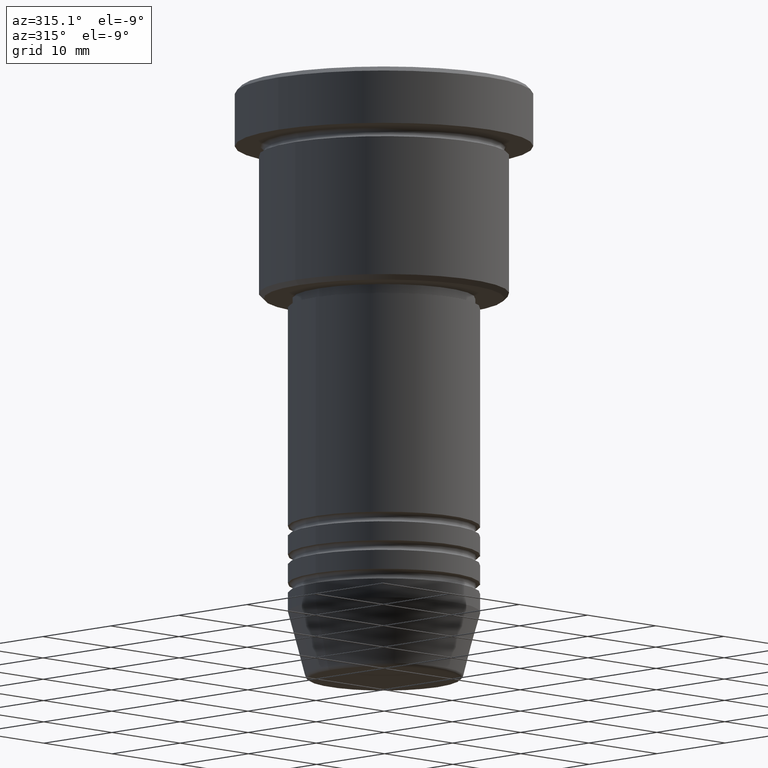
[diagram: clean part render]
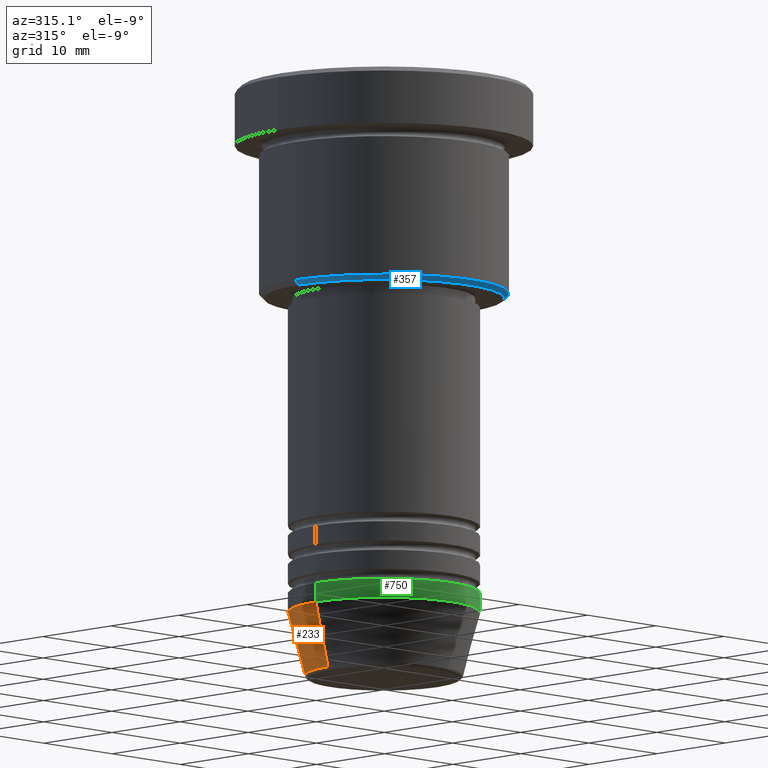
[diagram: same view with three faces highlighted in distinct colors, each labeled with its STEP entity id]
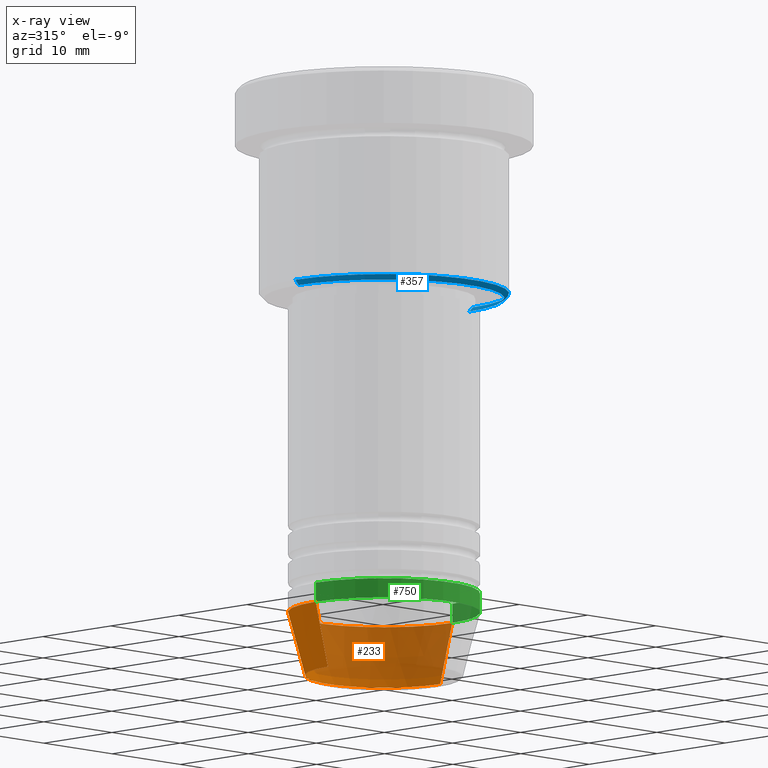
[diagram: x-ray of the same camera — body ghosted, the three highlighted faces saturated]
A machine part, auxiliary view with three faces highlighted in distinct colors.
The next image is the same camera in x-ray (body ghosted, the three faces saturated) — at least one of them is partly hidden behind the body in this view.
Their STEP definitions:

[orange] entity #233 — the highlighted conical surface has half-angle 15 deg.
#6 = EDGE_CURVE ( 'NONE', #618, #454, #274, .T. ) ;
#21 = ORIENTED_EDGE ( 'NONE', *, *, #638, .T. ) ;
#54 = CARTESIAN_POINT ( 'NONE',  ( 0.000000000000000000, 0.000000000000000000, -55.00000000000000000 ) ) ;
#83 = CARTESIAN_POINT ( 'NONE',  ( 0.000000000000000000, 0.000000000000000000, -61.62940952255126348 ) ) ;
#147 = ORIENTED_EDGE ( 'NONE', *, *, #6, .F. ) ;
#151 = CIRCLE ( 'NONE', #605, 8.223655072137191269 ) ;
#163 = FACE_OUTER_BOUND ( 'NONE', #284, .T. ) ;
#182 = CARTESIAN_POINT ( 'NONE',  ( -10.00000000000000000, 1.224646799147353256E-15, -55.00000000000000000 ) ) ;
#233 = ADVANCED_FACE ( 'NONE', ( #163 ), #416, .T. ) ;
#235 = ORIENTED_EDGE ( 'NONE', *, *, #1066, .F. ) ;
#274 = LINE ( 'NONE', #659, #1159 ) ;
#284 = EDGE_LOOP ( 'NONE', ( #697, #21, #235, #147 ) ) ;
#334 = DIRECTION ( 'NONE',  ( 1.000000000000000000, 0.000000000000000000, 0.000000000000000000 ) ) ;
#381 = EDGE_CURVE ( 'NONE', #618, #813, #151, .T. ) ;
#393 = CARTESIAN_POINT ( 'NONE',  ( -8.223655072137191269, 1.115877042642912054E-15, -61.62940952255126348 ) ) ;
#401 = DIRECTION ( 'NONE',  ( 1.000000000000000000, 0.000000000000000000, 0.000000000000000000 ) ) ;
#416 = CONICAL_SURFACE ( 'NONE', #724, 10.00000000000000000, 0.2617993877991500740 ) ;
#454 = VERTEX_POINT ( 'NONE', #583 ) ;
#557 = DIRECTION ( 'NONE',  ( 1.000000000000000000, 0.000000000000000000, 0.000000000000000000 ) ) ;
#579 = DIRECTION ( 'NONE',  ( -0.000000000000000000, -0.000000000000000000, 1.000000000000000000 ) ) ;
#583 = CARTESIAN_POINT ( 'NONE',  ( 10.00000000000000000, 0.000000000000000000, -55.00000000000000000 ) ) ;
#605 = AXIS2_PLACEMENT_3D ( 'NONE', #83, #579, #401 ) ;
#618 = VERTEX_POINT ( 'NONE', #1153 ) ;
#638 = EDGE_CURVE ( 'NONE', #813, #1018, #640, .T. ) ;
#640 = LINE ( 'NONE', #182, #1162 ) ;
#653 = DIRECTION ( 'NONE',  ( 0.2588190451025213501, 0.000000000000000000, 0.9659258262890680902 ) ) ;
#659 = CARTESIAN_POINT ( 'NONE',  ( 10.00000000000000000, 0.000000000000000000, -55.00000000000000000 ) ) ;
#685 = CARTESIAN_POINT ( 'NONE',  ( -10.00000000000000000, 1.224646799147353256E-15, -55.00000000000000000 ) ) ;
#697 = ORIENTED_EDGE ( 'NONE', *, *, #381, .T. ) ;
#724 = AXIS2_PLACEMENT_3D ( 'NONE', #54, #883, #334 ) ;
#813 = VERTEX_POINT ( 'NONE', #393 ) ;
#826 = CARTESIAN_POINT ( 'NONE',  ( 0.000000000000000000, 0.000000000000000000, -55.00000000000000000 ) ) ;
#883 = DIRECTION ( 'NONE',  ( -0.000000000000000000, -0.000000000000000000, 1.000000000000000000 ) ) ;
#1018 = VERTEX_POINT ( 'NONE', #685 ) ;
#1066 = EDGE_CURVE ( 'NONE', #454, #1018, #1103, .T. ) ;
#1084 = DIRECTION ( 'NONE',  ( -0.2588190451025213501, 3.169619151431772337E-17, 0.9659258262890680902 ) ) ;
#1103 = CIRCLE ( 'NONE', #1163, 10.00000000000000000 ) ;
#1106 = DIRECTION ( 'NONE',  ( -0.000000000000000000, -0.000000000000000000, 1.000000000000000000 ) ) ;
#1153 = CARTESIAN_POINT ( 'NONE',  ( 8.223655072137191269, 0.000000000000000000, -61.62940952255126348 ) ) ;
#1159 = VECTOR ( 'NONE', #653, 1000.000000000000000 ) ;
#1162 = VECTOR ( 'NONE', #1084, 1000.000000000000000 ) ;
#1163 = AXIS2_PLACEMENT_3D ( 'NONE', #826, #1106, #557 ) ;

[blue] entity #357 — the highlighted conical surface has half-angle 45 deg.
#13 = AXIS2_PLACEMENT_3D ( 'NONE', #707, #159, #1167 ) ;
#73 = DIRECTION ( 'NONE',  ( 0.7071067811865487940, 0.000000000000000000, 0.7071067811865463515 ) ) ;
#102 = FACE_OUTER_BOUND ( 'NONE', #519, .T. ) ;
#121 = CARTESIAN_POINT ( 'NONE',  ( 12.49999999999998401, 0.000000000000000000, -22.00000000000000000 ) ) ;
#159 = DIRECTION ( 'NONE',  ( -0.000000000000000000, -0.000000000000000000, 1.000000000000000000 ) ) ;
#200 = CARTESIAN_POINT ( 'NONE',  ( 0.000000000000000000, 0.000000000000000000, -22.00000000000000000 ) ) ;
#256 = VERTEX_POINT ( 'NONE', #442 ) ;
#265 = DIRECTION ( 'NONE',  ( -0.7071067811865487940, 8.659560562354948882E-17, 0.7071067811865463515 ) ) ;
#282 = CIRCLE ( 'NONE', #784, 12.49999999999998401 ) ;
#296 = EDGE_CURVE ( 'NONE', #691, #256, #1041, .T. ) ;
#332 = CARTESIAN_POINT ( 'NONE',  ( -13.00000000000000000, 1.592040838891559095E-15, -21.49999999999998579 ) ) ;
#340 = VECTOR ( 'NONE', #73, 1000.000000000000000 ) ;
#352 = CARTESIAN_POINT ( 'NONE',  ( 0.000000000000000000, 0.000000000000000000, -21.49999999999998579 ) ) ;
#357 = ADVANCED_FACE ( 'NONE', ( #102 ), #819, .T. ) ;
#404 = VERTEX_POINT ( 'NONE', #121 ) ;
#429 = EDGE_CURVE ( 'NONE', #404, #969, #282, .T. ) ;
#442 = CARTESIAN_POINT ( 'NONE',  ( 13.00000000000000000, 0.000000000000000000, -21.49999999999998579 ) ) ;
#478 = DIRECTION ( 'NONE',  ( -1.000000000000000000, 0.000000000000000000, 0.000000000000000000 ) ) ;
#514 = ORIENTED_EDGE ( 'NONE', *, *, #646, .T. ) ;
#515 = LINE ( 'NONE', #332, #712 ) ;
#519 = EDGE_LOOP ( 'NONE', ( #1127, #778, #514, #768 ) ) ;
#541 = CARTESIAN_POINT ( 'NONE',  ( 13.00000000000000000, 0.000000000000000000, -21.49999999999998579 ) ) ;
#550 = DIRECTION ( 'NONE',  ( -0.000000000000000000, -0.000000000000000000, 1.000000000000000000 ) ) ;
#646 = EDGE_CURVE ( 'NONE', #404, #256, #1171, .T. ) ;
#680 = DIRECTION ( 'NONE',  ( 0.000000000000000000, 0.000000000000000000, -1.000000000000000000 ) ) ;
#691 = VERTEX_POINT ( 'NONE', #1176 ) ;
#707 = CARTESIAN_POINT ( 'NONE',  ( 0.000000000000000000, 0.000000000000000000, -21.49999999999998579 ) ) ;
#712 = VECTOR ( 'NONE', #265, 1000.000000000000000 ) ;
#768 = ORIENTED_EDGE ( 'NONE', *, *, #296, .F. ) ;
#778 = ORIENTED_EDGE ( 'NONE', *, *, #429, .F. ) ;
#784 = AXIS2_PLACEMENT_3D ( 'NONE', #200, #680, #478 ) ;
#814 = DIRECTION ( 'NONE',  ( 1.000000000000000000, 0.000000000000000000, 0.000000000000000000 ) ) ;
#819 = CONICAL_SURFACE ( 'NONE', #1178, 13.00000000000000000, 0.7853981633974500554 ) ;
#956 = CARTESIAN_POINT ( 'NONE',  ( -12.49999999999998401, 1.561424668912874125E-15, -22.00000000000000000 ) ) ;
#967 = EDGE_CURVE ( 'NONE', #969, #691, #515, .T. ) ;
#969 = VERTEX_POINT ( 'NONE', #956 ) ;
#1041 = CIRCLE ( 'NONE', #13, 13.00000000000000000 ) ;
#1127 = ORIENTED_EDGE ( 'NONE', *, *, #967, .F. ) ;
#1167 = DIRECTION ( 'NONE',  ( -1.000000000000000000, 0.000000000000000000, 0.000000000000000000 ) ) ;
#1171 = LINE ( 'NONE', #541, #340 ) ;
#1176 = CARTESIAN_POINT ( 'NONE',  ( -13.00000000000000000, 1.592040838891559095E-15, -21.49999999999998579 ) ) ;
#1178 = AXIS2_PLACEMENT_3D ( 'NONE', #352, #550, #814 ) ;

[green] entity #750 — the highlighted cylindrical surface (partial cylindrical patch) has radius 10 mm, axis along (-0, -0, 1).
#8 = DIRECTION ( 'NONE',  ( -0.000000000000000000, -0.000000000000000000, 1.000000000000000000 ) ) ;
#180 = ORIENTED_EDGE ( 'NONE', *, *, #1148, .F. ) ;
#207 = ORIENTED_EDGE ( 'NONE', *, *, #247, .F. ) ;
#230 = CARTESIAN_POINT ( 'NONE',  ( 0.000000000000000000, 0.000000000000000000, -55.00000000000000000 ) ) ;
#247 = EDGE_CURVE ( 'NONE', #1018, #716, #1061, .T. ) ;
#267 = CARTESIAN_POINT ( 'NONE',  ( -10.00000000000000000, 1.224646799147353256E-15, -53.00000000000000000 ) ) ;
#278 = CARTESIAN_POINT ( 'NONE',  ( 0.000000000000000000, 0.000000000000000000, 0.000000000000000000 ) ) ;
#342 = AXIS2_PLACEMENT_3D ( 'NONE', #230, #353, #508 ) ;
#353 = DIRECTION ( 'NONE',  ( -0.000000000000000000, -0.000000000000000000, 1.000000000000000000 ) ) ;
#370 = DIRECTION ( 'NONE',  ( 1.000000000000000000, 0.000000000000000000, 0.000000000000000000 ) ) ;
#383 = LINE ( 'NONE', #752, #397 ) ;
#397 = VECTOR ( 'NONE', #1109, 1000.000000000000000 ) ;
#441 = CIRCLE ( 'NONE', #342, 10.00000000000000000 ) ;
#454 = VERTEX_POINT ( 'NONE', #583 ) ;
#459 = CARTESIAN_POINT ( 'NONE',  ( 10.00000000000000000, 0.000000000000000000, -53.00000000000000000 ) ) ;
#476 = EDGE_CURVE ( 'NONE', #454, #1058, #383, .T. ) ;
#508 = DIRECTION ( 'NONE',  ( 1.000000000000000000, 0.000000000000000000, 0.000000000000000000 ) ) ;
#527 = DIRECTION ( 'NONE',  ( -0.000000000000000000, -0.000000000000000000, 1.000000000000000000 ) ) ;
#583 = CARTESIAN_POINT ( 'NONE',  ( 10.00000000000000000, 0.000000000000000000, -55.00000000000000000 ) ) ;
#632 = ORIENTED_EDGE ( 'NONE', *, *, #476, .T. ) ;
#648 = DIRECTION ( 'NONE',  ( -0.000000000000000000, -0.000000000000000000, 1.000000000000000000 ) ) ;
#685 = CARTESIAN_POINT ( 'NONE',  ( -10.00000000000000000, 1.224646799147353256E-15, -55.00000000000000000 ) ) ;
#713 = CIRCLE ( 'NONE', #729, 10.00000000000000000 ) ;
#716 = VERTEX_POINT ( 'NONE', #267 ) ;
#728 = CYLINDRICAL_SURFACE ( 'NONE', #839, 10.00000000000000000 ) ;
#729 = AXIS2_PLACEMENT_3D ( 'NONE', #1007, #8, #370 ) ;
#750 = ADVANCED_FACE ( 'NONE', ( #1095 ), #728, .T. ) ;
#752 = CARTESIAN_POINT ( 'NONE',  ( 10.00000000000000000, 0.000000000000000000, 0.000000000000000000 ) ) ;
#839 = AXIS2_PLACEMENT_3D ( 'NONE', #278, #648, #910 ) ;
#871 = EDGE_LOOP ( 'NONE', ( #207, #949, #632, #180 ) ) ;
#910 = DIRECTION ( 'NONE',  ( 1.000000000000000000, 0.000000000000000000, 0.000000000000000000 ) ) ;
#949 = ORIENTED_EDGE ( 'NONE', *, *, #982, .T. ) ;
#951 = VECTOR ( 'NONE', #527, 1000.000000000000000 ) ;
#982 = EDGE_CURVE ( 'NONE', #1018, #454, #441, .T. ) ;
#1007 = CARTESIAN_POINT ( 'NONE',  ( 0.000000000000000000, 0.000000000000000000, -53.00000000000000000 ) ) ;
#1018 = VERTEX_POINT ( 'NONE', #685 ) ;
#1058 = VERTEX_POINT ( 'NONE', #459 ) ;
#1061 = LINE ( 'NONE', #1069, #951 ) ;
#1069 = CARTESIAN_POINT ( 'NONE',  ( -10.00000000000000000, 1.224646799147353256E-15, 0.000000000000000000 ) ) ;
#1095 = FACE_OUTER_BOUND ( 'NONE', #871, .T. ) ;
#1109 = DIRECTION ( 'NONE',  ( -0.000000000000000000, -0.000000000000000000, 1.000000000000000000 ) ) ;
#1148 = EDGE_CURVE ( 'NONE', #716, #1058, #713, .T. ) ;